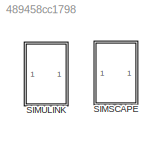
MODEL slx_489458cc1798
KIND model
CONFIG AbsTol = auto
CONFIG EnableMultiTasking = off
CONFIG FixedStep = auto
CONFIG MaxStep = auto
CONFIG MinStep = auto
CONFIG RelTol = 1e-3
CONFIG SampleTimeConstraint = Unconstrained
CONFIG SolverName = VariableStepAuto
CONFIG StartTime = 0.0
CONFIG StopTime = 10.0
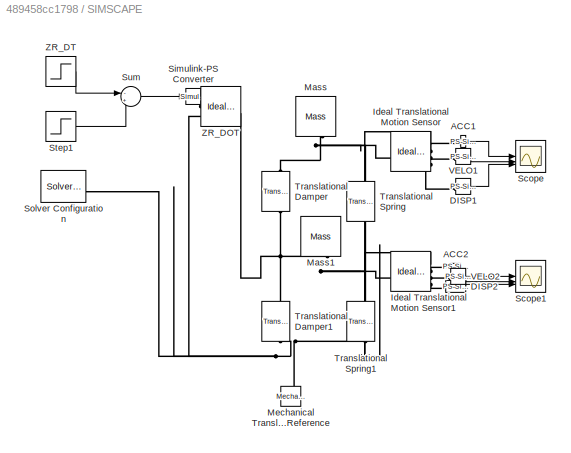
BLOCK [SubSystem] SIMSCAPE
BLOCK [Reference] SIMSCAPE/ACC1  REF=nesl_utility/PS-Simulink
Converter
  NameLocation = top
  SourceBlock = nesl_utility/PS-Simulink\nConverter
  SourceType = PS-Simulink\nConverter
BLOCK [Reference] SIMSCAPE/ACC2  REF=nesl_utility/PS-Simulink
Converter
  SourceBlock = nesl_utility/PS-Simulink\nConverter
  SourceType = PS-Simulink\nConverter
BLOCK [Reference] SIMSCAPE/DISP1  REF=nesl_utility/PS-Simulink
Converter
  SourceBlock = nesl_utility/PS-Simulink\nConverter
  SourceType = PS-Simulink\nConverter
BLOCK [Reference] SIMSCAPE/DISP2  REF=nesl_utility/PS-Simulink
Converter
  SourceBlock = nesl_utility/PS-Simulink\nConverter
  SourceType = PS-Simulink\nConverter
BLOCK [Reference] SIMSCAPE/Ideal Translational Motion Sensor  REF=fl_lib/Mechanical/Mechanical Sensors/Ideal Translational
Motion Sensor
  SourceBlock = fl_lib/Mechanical/Mechanical Sensors/Ideal Translational\nMotion Sensor
  SourceType = Ideal Translational\nMotion Sensor
BLOCK [Reference] SIMSCAPE/Ideal Translational Motion Sensor1  REF=fl_lib/Mechanical/Mechanical Sensors/Ideal Translational
Motion Sensor
  SourceBlock = fl_lib/Mechanical/Mechanical Sensors/Ideal Translational\nMotion Sensor
  SourceType = Ideal Translational\nMotion Sensor
BLOCK [Reference] SIMSCAPE/Mass  REF=fl_lib/Mechanical/Translational
Elements/Mass
  NameLocation = left
  SourceBlock = fl_lib/Mechanical/Translational\nElements/Mass
  SourceType = Mass
BLOCK [Reference] SIMSCAPE/Mass1  REF=fl_lib/Mechanical/Translational
Elements/Mass
  NameLocation = left
  SourceBlock = fl_lib/Mechanical/Translational\nElements/Mass
  SourceType = Mass
BLOCK [Reference] SIMSCAPE/Mechanical Translational Reference  REF=fl_lib/Mechanical/Translational
Elements/Mechanical
Translational
Reference
  NameLocation = right
  SourceBlock = fl_lib/Mechanical/Translational\nElements/Mechanical\nTranslational\nReference
  SourceType = Mechanical\nTranslational\nReference
BLOCK [Scope] SIMSCAPE/Scope
  Floating = off
  NumInputPorts = 3
  ScopeSpecificationString = Simulink.scopes.TimeScopeBlockCfg('CurrentConfiguration', extmgr.ConfigurationSet(extmgr.Configuration('Core','General UI',true),extmgr.Configuration('Core','Source UI',true),extmgr.Configuration('Sources','WiredSimulink',true,'DataLoggingVariableName','ScopeData2'),extmgr.Configuration('Visuals','Time Domain',true,'SerializedDisplays',{struct('MinYLimReal','-1.00000','MaxYLimReal','1.00000','YLab...<+3683ch>
BLOCK [Scope] SIMSCAPE/Scope1
  Floating = off
  NumInputPorts = 3
  ScopeSpecificationString = Simulink.scopes.TimeScopeBlockCfg('CurrentConfiguration', extmgr.ConfigurationSet(extmgr.Configuration('Core','General UI',true),extmgr.Configuration('Core','Source UI',true),extmgr.Configuration('Sources','WiredSimulink',true,'DataLoggingVariableName','ScopeData3'),extmgr.Configuration('Visuals','Time Domain',true,'SerializedDisplays',{struct('MinYLimReal','-1.00000','MaxYLimReal','1.00000','YLab...<+3683ch>
BLOCK [Reference] SIMSCAPE/Simulink-PS Converter  REF=nesl_utility/Simulink-PS
Converter
  SourceBlock = nesl_utility/Simulink-PS\nConverter
  SourceType = Simulink-PS\nConverter
BLOCK [Reference] SIMSCAPE/Solver Configuration  REF=nesl_utility/Solver
Configuration
  SourceBlock = nesl_utility/Solver\nConfiguration
  SourceType = Solver\nConfiguration
BLOCK [Step] SIMSCAPE/Step1
  SampleTime = 0
BLOCK [Sum] SIMSCAPE/Sum
  Inputs = -+
BLOCK [Reference] SIMSCAPE/Translational Damper  REF=fl_lib/Mechanical/Translational
Elements/Translational Damper
  NameLocation = left
  SourceBlock = fl_lib/Mechanical/Translational\nElements/Translational Damper
  SourceType = Translational Damper
BLOCK [Reference] SIMSCAPE/Translational Damper1  REF=fl_lib/Mechanical/Translational
Elements/Translational Damper
  NameLocation = left
  SourceBlock = fl_lib/Mechanical/Translational\nElements/Translational Damper
  SourceType = Translational Damper
BLOCK [Reference] SIMSCAPE/Translational Spring  REF=fl_lib/Mechanical/Translational
Elements/Translational Spring
  NameLocation = left
  SourceBlock = fl_lib/Mechanical/Translational\nElements/Translational Spring
  SourceType = Translational Spring
BLOCK [Reference] SIMSCAPE/Translational Spring1  REF=fl_lib/Mechanical/Translational
Elements/Translational Spring
  NameLocation = left
  SourceBlock = fl_lib/Mechanical/Translational\nElements/Translational Spring
  SourceType = Translational Spring
BLOCK [Reference] SIMSCAPE/VELO1  REF=nesl_utility/PS-Simulink
Converter
  SourceBlock = nesl_utility/PS-Simulink\nConverter
  SourceType = PS-Simulink\nConverter
BLOCK [Reference] SIMSCAPE/VELO2  REF=nesl_utility/PS-Simulink
Converter
  SourceBlock = nesl_utility/PS-Simulink\nConverter
  SourceType = PS-Simulink\nConverter
BLOCK [Reference] SIMSCAPE/ZR_DOT  REF=fl_lib/Mechanical/Mechanical Sources/Ideal Force Source
  SourceBlock = fl_lib/Mechanical/Mechanical Sources/Ideal Force Source
  SourceType = Ideal Force Source
BLOCK [Step] SIMSCAPE/ZR_DT
  SampleTime = 0
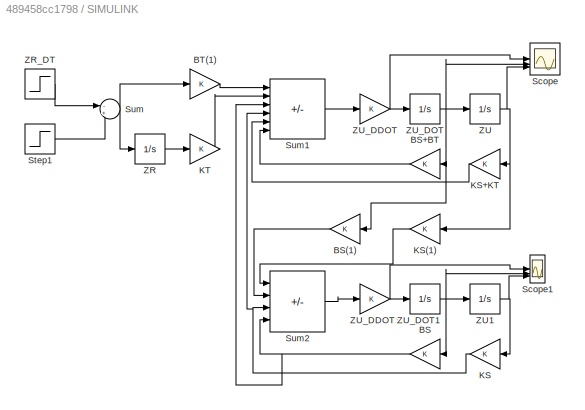
BLOCK [SubSystem] SIMULINK
  Commented = on
BLOCK [Gain] SIMULINK/BS
BLOCK [Gain] SIMULINK/BS(1)
BLOCK [Gain] SIMULINK/BS+BT
BLOCK [Gain] SIMULINK/BT(1)
BLOCK [Gain] SIMULINK/KS
BLOCK [Gain] SIMULINK/KS(1)
BLOCK [Gain] SIMULINK/KS+KT
BLOCK [Gain] SIMULINK/KT
BLOCK [Scope] SIMULINK/Scope
  Floating = off
  NumInputPorts = 3
  ScopeSpecificationString = Simulink.scopes.TimeScopeBlockCfg('CurrentConfiguration', extmgr.ConfigurationSet(extmgr.Configuration('Core','General UI',true),extmgr.Configuration('Core','Source UI',true),extmgr.Configuration('Sources','WiredSimulink',true),extmgr.Configuration('Visuals','Time Domain',true,'SerializedDisplays',{struct('MinYLimReal','-1.00000','MaxYLimReal','1.00000','YLabelReal','','MinYLimMag','0.00000','MaxY...<+3708ch>
BLOCK [Scope] SIMULINK/Scope1
  Floating = off
  NumInputPorts = 3
  ScopeSpecificationString = Simulink.scopes.TimeScopeBlockCfg('CurrentConfiguration', extmgr.ConfigurationSet(extmgr.Configuration('Core','General UI',true),extmgr.Configuration('Core','Source UI',true),extmgr.Configuration('Sources','WiredSimulink',true,'DataLoggingVariableName','ScopeData1'),extmgr.Configuration('Visuals','Time Domain',true,'SerializedDisplays',{struct('MinYLimReal','-1.00000','MaxYLimReal','1.00000','YLab...<+3750ch>
BLOCK [Step] SIMULINK/Step1
  SampleTime = 0
BLOCK [Sum] SIMULINK/Sum
  Inputs = -+
BLOCK [Sum] SIMULINK/Sum1
  IconShape = rectangular
  Inputs = ++++--
BLOCK [Sum] SIMULINK/Sum2
  IconShape = rectangular
  Inputs = ++--
BLOCK [Integrator] SIMULINK/ZR
BLOCK [Step] SIMULINK/ZR_DT
  SampleTime = 0
BLOCK [Integrator] SIMULINK/ZU
BLOCK [Integrator] SIMULINK/ZU1
BLOCK [Gain] SIMULINK/ZU_DDOT
BLOCK [Gain] SIMULINK/ZU_DDOT1
BLOCK [Integrator] SIMULINK/ZU_DOT
BLOCK [Integrator] SIMULINK/ZU_DOT1
LINE SIMSCAPE/ACC1:1 -> SIMSCAPE/Scope:1
LINE SIMSCAPE/ACC2:1 -> SIMSCAPE/Scope1:1
LINE SIMSCAPE/DISP1:1 -> SIMSCAPE/Scope:3
LINE SIMSCAPE/DISP2:1 -> SIMSCAPE/Scope1:3
LINE SIMSCAPE/Step1:1 -> SIMSCAPE/Sum:2
LINE SIMSCAPE/Sum:1 -> SIMSCAPE/Simulink-PS Converter:1
LINE SIMSCAPE/VELO1:1 -> SIMSCAPE/Scope:2
LINE SIMSCAPE/VELO2:1 -> SIMSCAPE/Scope1:2
LINE SIMSCAPE/ZR_DT:1 -> SIMSCAPE/Sum:1
LINE SIMULINK/BS(1):1 -> SIMULINK/Sum2:2
LINE SIMULINK/BS+BT:1 -> SIMULINK/Sum1:6
NET SIMULINK/BS:1 -> SIMULINK/Sum1:3, SIMULINK/Sum2:4
LINE SIMULINK/BT(1):1 -> SIMULINK/Sum1:1
LINE SIMULINK/KS(1):1 -> SIMULINK/Sum2:1
LINE SIMULINK/KS+KT:1 -> SIMULINK/Sum1:5
NET SIMULINK/KS:1 -> SIMULINK/Sum1:4, SIMULINK/Sum2:3
LINE SIMULINK/KT:1 -> SIMULINK/Sum1:2
LINE SIMULINK/Step1:1 -> SIMULINK/Sum:2
LINE SIMULINK/Sum1:1 -> SIMULINK/ZU_DDOT:1
LINE SIMULINK/Sum2:1 -> SIMULINK/ZU_DDOT1:1
NET SIMULINK/Sum:1 -> SIMULINK/BT(1):1, SIMULINK/ZR:1
LINE SIMULINK/ZR:1 -> SIMULINK/KT:1
LINE SIMULINK/ZR_DT:1 -> SIMULINK/Sum:1
NET SIMULINK/ZU1:1 -> SIMULINK/KS:1, SIMULINK/Scope1:3
NET SIMULINK/ZU:1 -> SIMULINK/KS(1):1, SIMULINK/KS+KT:1, SIMULINK/Scope:3
NET SIMULINK/ZU_DDOT1:1 -> SIMULINK/Scope1:1, SIMULINK/ZU_DOT1:1
NET SIMULINK/ZU_DDOT:1 -> SIMULINK/Scope:1, SIMULINK/ZU_DOT:1
NET SIMULINK/ZU_DOT1:1 -> SIMULINK/BS:1, SIMULINK/Scope1:2, SIMULINK/ZU1:1
NET SIMULINK/ZU_DOT:1 -> SIMULINK/BS(1):1, SIMULINK/BS+BT:1, SIMULINK/Scope:2, SIMULINK/ZU:1
PLINE SIMSCAPE/ACC1:LConn1 -- SIMSCAPE/Ideal Translational Motion Sensor:RConn2
PLINE SIMSCAPE/ACC2:LConn1 -- SIMSCAPE/Ideal Translational Motion Sensor1:RConn2
PLINE SIMSCAPE/DISP1:LConn1 -- SIMSCAPE/Ideal Translational Motion Sensor:RConn4
PLINE SIMSCAPE/DISP2:LConn1 -- SIMSCAPE/Ideal Translational Motion Sensor1:RConn4
PNET net1: SIMSCAPE/Ideal Translational Motion Sensor1:LConn1 -- SIMSCAPE/Mass1:LConn1 -- SIMSCAPE/Translational Damper1:LConn1 -- SIMSCAPE/Translational Damper:RConn1 -- SIMSCAPE/Translational Spring1:LConn1 -- SIMSCAPE/Translational Spring:RConn1 -- SIMSCAPE/ZR_DOT:LConn1
PNET net2: SIMSCAPE/Ideal Translational Motion Sensor1:RConn1 -- SIMSCAPE/Ideal Translational Motion Sensor:RConn1 -- SIMSCAPE/Mechanical Translational Reference:LConn1 -- SIMSCAPE/Solver Configuration:RConn1 -- SIMSCAPE/Translational Damper1:RConn1 -- SIMSCAPE/Translational Spring1:RConn1 -- SIMSCAPE/ZR_DOT:RConn2
PLINE SIMSCAPE/Ideal Translational Motion Sensor1:RConn3 -- SIMSCAPE/VELO2:LConn1
PNET net3: SIMSCAPE/Ideal Translational Motion Sensor:LConn1 -- SIMSCAPE/Mass:LConn1 -- SIMSCAPE/Translational Damper:LConn1 -- SIMSCAPE/Translational Spring:LConn1
PLINE SIMSCAPE/Ideal Translational Motion Sensor:RConn3 -- SIMSCAPE/VELO1:LConn1
PLINE SIMSCAPE/Simulink-PS Converter:RConn1 -- SIMSCAPE/ZR_DOT:RConn1
note: NET lines group one-source signal fan-out (src -> all destinations, sorted); 1:1 wires keep LINE; PNET lines group multi-terminal physical nets as a canonical sorted terminal list (undirected conserving connections); 2-terminal nets keep the pairwise PLINE form
